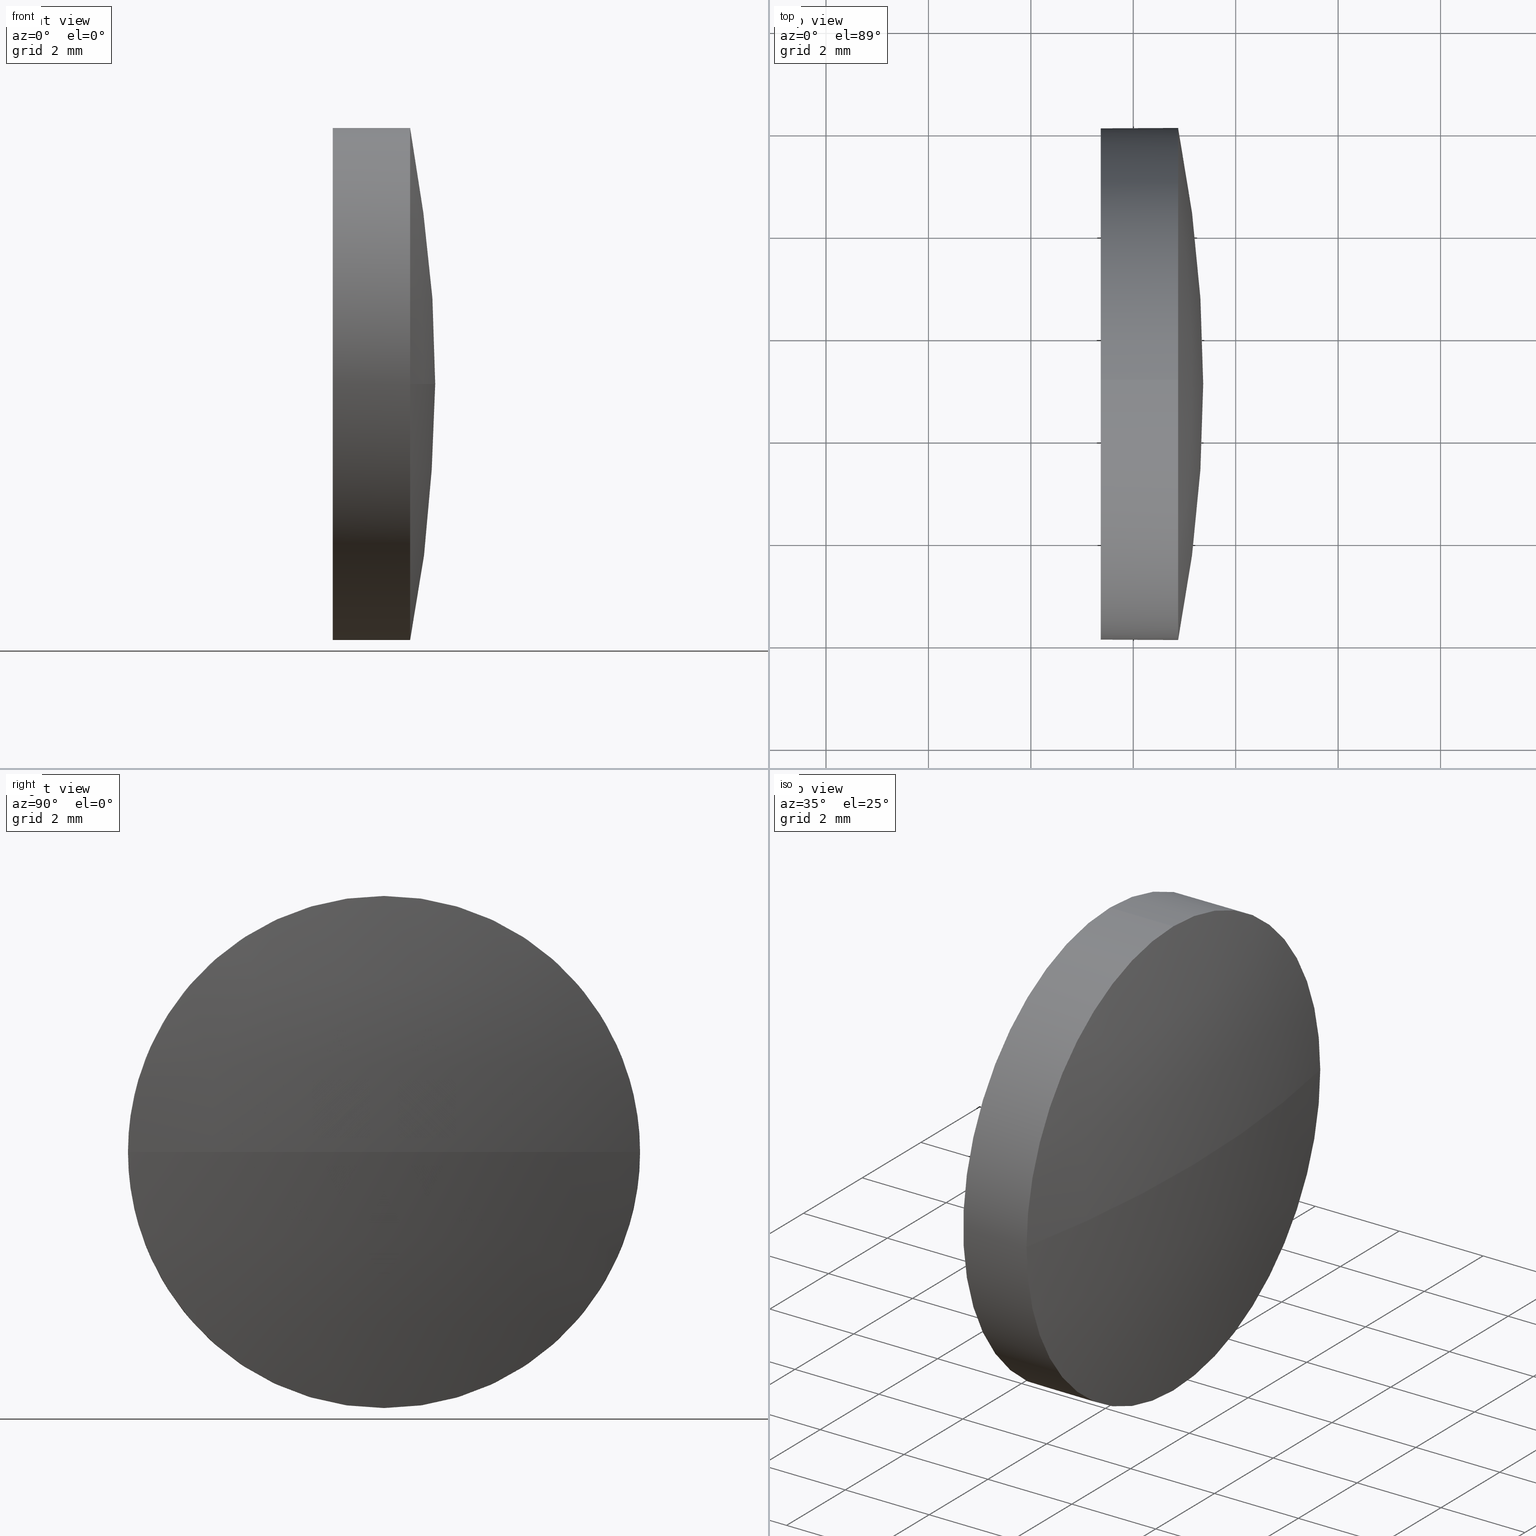
[diagram: canonical four-view strip — front | top / right | iso, engineering-drawing reading convention]
A machine part, canonical four-view strip (front | top / right | iso — engineering-drawing reading convention). The complete STEP part file that produces these views, byte-faithful:
ISO-10303-21;
HEADER;
FILE_DESCRIPTION (( 'STEP AP214' ),
    '1' );
FILE_NAME ('100192.STEP',
    '2019-05-21T09:33:21',
    ( '' ),
    ( '' ),
    'SwSTEP 2.0',
    'SolidWorks 2016',
    '' );
FILE_SCHEMA (( 'AUTOMOTIVE_DESIGN' ));
ENDSEC;

DATA;
#1 = ORIENTED_EDGE ( 'NONE', *, *, #38, .F. ) ;
#2 = VERTEX_POINT ( 'NONE', #40 ) ;
#3 = DIRECTION ( 'NONE',  ( 0.0000000000000000000, 0.0000000000000000000, -1.000000000000000000 ) ) ;
#4 = COLOUR_RGB ( '',1.000000000000000000, 1.000000000000000000, 1.000000000000000000 ) ;
#5 = FACE_OUTER_BOUND ( 'NONE', #73, .T. ) ;
#6 = PRESENTATION_LAYER_ASSIGNMENT (  '', '', ( #15 ) ) ;
#7 = ADVANCED_FACE ( 'NONE', ( #164 ), #136, .T. ) ;
#8 = COLOUR_RGB ( '',1.000000000000000000, 1.000000000000000000, 1.000000000000000000 ) ;
#9 =( NAMED_UNIT ( * ) SI_UNIT ( $, .STERADIAN. ) SOLID_ANGLE_UNIT ( ) );
#10 = PRODUCT_CONTEXT ( 'NONE', #75, 'mechanical' ) ;
#11 = FACE_OUTER_BOUND ( 'NONE', #39, .T. ) ;
#12 = CYLINDRICAL_SURFACE ( 'NONE', #184, 5.000000000000004400 ) ;
#13 = DIRECTION ( 'NONE',  ( -1.000000000000000000, -0.0000000000000000000, -0.0000000000000000000 ) ) ;
#14 =( GEOMETRIC_REPRESENTATION_CONTEXT ( 3 ) GLOBAL_UNCERTAINTY_ASSIGNED_CONTEXT ( ( #22 ) ) GLOBAL_UNIT_ASSIGNED_CONTEXT ( ( #100, #166, #9 ) ) REPRESENTATION_CONTEXT ( 'NONE', 'WORKASPACE' ) );
#15 = STYLED_ITEM ( 'NONE', ( #139 ), #62 ) ;
#16 = SURFACE_STYLE_FILL_AREA ( #132 ) ;
#17 = DIRECTION ( 'NONE',  ( 1.000000000000000000, 0.0000000000000000000, 0.0000000000000000000 ) ) ;
#18 = ORIENTED_EDGE ( 'NONE', *, *, #113, .F. ) ;
#19 = DIRECTION ( 'NONE',  ( -1.000000000000000000, -0.0000000000000000000, -0.0000000000000000000 ) ) ;
#20 = DIRECTION ( 'NONE',  ( 0.0000000000000000000, 0.0000000000000000000, 1.000000000000000000 ) ) ;
#21 = EDGE_CURVE ( 'NONE', #2, #185, #68, .T. ) ;
#22 = UNCERTAINTY_MEASURE_WITH_UNIT (LENGTH_MEASURE( 1.000000000000000100E-005 ), #100, 'distance_accuracy_value', 'NONE');
#23 = CLOSED_SHELL ( 'NONE', ( #101, #51, #81, #7, #58 ) ) ;
#24 = ORIENTED_EDGE ( 'NONE', *, *, #142, .F. ) ;
#25 = CARTESIAN_POINT ( 'NONE',  ( 464.8755895717470100, 129.0640257703732300, 5.000000000000004400 ) ) ;
#26 = CARTESIAN_POINT ( 'NONE',  ( 464.8755895717470100, 129.0640257703732300, 0.0000000000000000000 ) ) ;
#27 = PRODUCT_DEFINITION_CONTEXT ( 'detailed design', #182, 'design' ) ;
#28 = CIRCLE ( 'NONE', #130, 5.000000000000004400 ) ;
#29 = LINE ( 'NONE', #160, #172 ) ;
#30 = ORIENTED_EDGE ( 'NONE', *, *, #142, .T. ) ;
#31 = DIRECTION ( 'NONE',  ( 0.0000000000000000000, 1.224646799147353200E-016, -1.000000000000000000 ) ) ;
#32 = SPHERICAL_SURFACE ( 'NONE', #153, 25.75520408163263400 ) ;
#33 = PRODUCT_DEFINITION_FORMATION_WITH_SPECIFIED_SOURCE ( '�κ�', '', #95, .NOT_KNOWN. ) ;
#34 = SPHERICAL_SURFACE ( 'NONE', #84, 25.75520408163263400 ) ;
#35 =( LENGTH_UNIT ( ) NAMED_UNIT ( * ) SI_UNIT ( .MILLI., .METRE. ) );
#36 =( NAMED_UNIT ( * ) PLANE_ANGLE_UNIT ( ) SI_UNIT ( $, .RADIAN. ) );
#37 = EDGE_LOOP ( 'NONE', ( #123, #46, #1, #99 ) ) ;
#38 = EDGE_CURVE ( 'NONE', #162, #185, #119, .T. ) ;
#39 = EDGE_LOOP ( 'NONE', ( #96, #104, #18, #24, #65 ) ) ;
#40 = CARTESIAN_POINT ( 'NONE',  ( 465.3655895717470200, 129.0640257703731500, 0.0000000000000000000 ) ) ;
#41 = DIRECTION ( 'NONE',  ( 0.0000000000000000000, 0.0000000000000000000, 1.000000000000000000 ) ) ;
#42 = EDGE_LOOP ( 'NONE', ( #112, #87, #57, #64 ) ) ;
#43 =( NAMED_UNIT ( * ) SI_UNIT ( $, .STERADIAN. ) SOLID_ANGLE_UNIT ( ) );
#44 = DIRECTION ( 'NONE',  ( -0.0000000000000000000, 0.0000000000000000000, -1.000000000000000000 ) ) ;
#45 = PLANE ( 'NONE',  #122 ) ;
#46 = ORIENTED_EDGE ( 'NONE', *, *, #21, .T. ) ;
#47 = DIRECTION ( 'NONE',  ( -1.000000000000000000, -0.0000000000000000000, -0.0000000000000000000 ) ) ;
#48 = DIRECTION ( 'NONE',  ( -1.000000000000000000, -0.0000000000000000000, -0.0000000000000000000 ) ) ;
#49 = LINE ( 'NONE', #144, #152 ) ;
#50 = DIRECTION ( 'NONE',  ( 0.0000000000000000000, 0.0000000000000000000, 1.000000000000000000 ) ) ;
#51 = ADVANCED_FACE ( 'NONE', ( #179 ), #34, .T. ) ;
#52 =( GEOMETRIC_REPRESENTATION_CONTEXT ( 3 ) GLOBAL_UNCERTAINTY_ASSIGNED_CONTEXT ( ( #114 ) ) GLOBAL_UNIT_ASSIGNED_CONTEXT ( ( #35, #36, #150 ) ) REPRESENTATION_CONTEXT ( 'NONE', 'WORKASPACE' ) );
#53 = VERTEX_POINT ( 'NONE', #66 ) ;
#54 = FILL_AREA_STYLE_COLOUR ( '', #8 ) ;
#55 = CARTESIAN_POINT ( 'NONE',  ( 462.5679173176816300, 129.0640257703732300, 0.0000000000000000000 ) ) ;
#56 = UNCERTAINTY_MEASURE_WITH_UNIT (LENGTH_MEASURE( 1.000000000000000100E-005 ), #79, 'distance_accuracy_value', 'NONE');
#57 = ORIENTED_EDGE ( 'NONE', *, *, #94, .F. ) ;
#58 = ADVANCED_FACE ( 'NONE', ( #5 ), #45, .F. ) ;
#59 = EDGE_CURVE ( 'NONE', #2, #145, #80, .T. ) ;
#60 = APPLICATION_PROTOCOL_DEFINITION ( 'draft international standard', 'automotive_design', 1998, #75 ) ;
#61 = DIRECTION ( 'NONE',  ( -1.000000000000000000, -0.0000000000000000000, -0.0000000000000000000 ) ) ;
#62 = ADVANCED_BREP_SHAPE_REPRESENTATION ( '100192', ( #117, #131 ), #52 ) ;
#63 = CIRCLE ( 'NONE', #161, 5.000000000000004400 ) ;
#64 = ORIENTED_EDGE ( 'NONE', *, *, #176, .F. ) ;
#65 = ORIENTED_EDGE ( 'NONE', *, *, #38, .T. ) ;
#66 = CARTESIAN_POINT ( 'NONE',  ( 463.3655895717470200, 129.0640257703732300, -5.000000000000004400 ) ) ;
#67 = SURFACE_SIDE_STYLE ('',( #129 ) ) ;
#68 = CIRCLE ( 'NONE', #97, 25.75520408163262000 ) ;
#69 = CARTESIAN_POINT ( 'NONE',  ( 463.3655895717470200, 129.0640257703732300, 5.000000000000004400 ) ) ;
#70 = EDGE_CURVE ( 'NONE', #145, #162, #92, .T. ) ;
#71 = DIRECTION ( 'NONE',  ( 0.0000000000000000000, 0.0000000000000000000, 1.000000000000000000 ) ) ;
#72 = DIRECTION ( 'NONE',  ( -1.000000000000000000, -0.0000000000000000000, -0.0000000000000000000 ) ) ;
#73 = EDGE_LOOP ( 'NONE', ( #174, #82 ) ) ;
#74 = DIRECTION ( 'NONE',  ( 0.0000000000000000000, 0.0000000000000000000, 1.000000000000000000 ) ) ;
#75 = APPLICATION_CONTEXT ( 'automotive_design' ) ;
#76 = VERTEX_POINT ( 'NONE', #108 ) ;
#77 = AXIS2_PLACEMENT_3D ( 'NONE', #138, #171, #41 ) ;
#78 = MECHANICAL_DESIGN_GEOMETRIC_PRESENTATION_REPRESENTATION (  '', ( #175 ), #173 ) ;
#79 =( LENGTH_UNIT ( ) NAMED_UNIT ( * ) SI_UNIT ( .MILLI., .METRE. ) );
#80 = CIRCLE ( 'NONE', #146, 25.75520408163264800 ) ;
#81 = ADVANCED_FACE ( 'NONE', ( #134 ), #32, .T. ) ;
#82 = ORIENTED_EDGE ( 'NONE', *, *, #159, .T. ) ;
#83 = SURFACE_SIDE_STYLE ('',( #16 ) ) ;
#84 = AXIS2_PLACEMENT_3D ( 'NONE', #90, #137, #155 ) ;
#85 = PRESENTATION_LAYER_ASSIGNMENT (  '', '', ( #175 ) ) ;
#86 = EDGE_CURVE ( 'NONE', #76, #53, #49, .T. ) ;
#87 = ORIENTED_EDGE ( 'NONE', *, *, #59, .T. ) ;
#88 = CARTESIAN_POINT ( 'NONE',  ( 439.6103854901143700, 129.0640257703731500, 0.0000000000000000000 ) ) ;
#89 = DIRECTION ( 'NONE',  ( 0.0000000000000000000, 0.0000000000000000000, 1.000000000000000000 ) ) ;
#90 = CARTESIAN_POINT ( 'NONE',  ( 439.6103854901143700, 129.0640257703731500, 0.0000000000000000000 ) ) ;
#91 = CARTESIAN_POINT ( 'NONE',  ( 439.6103854901143700, 129.0640257703731500, 0.0000000000000000000 ) ) ;
#92 = CIRCLE ( 'NONE', #107, 5.000000000000004400 ) ;
#93 = CARTESIAN_POINT ( 'NONE',  ( 464.8755895717470100, 129.0640257703732300, 0.0000000000000000000 ) ) ;
#94 = EDGE_CURVE ( 'NONE', #76, #145, #28, .T. ) ;
#95 = PRODUCT ( '100192', '100192', '', ( #10 ) ) ;
#96 = ORIENTED_EDGE ( 'NONE', *, *, #176, .T. ) ;
#97 = AXIS2_PLACEMENT_3D ( 'NONE', #88, #121, #168 ) ;
#98 = PRODUCT_DEFINITION ( 'δ֪', '', #33, #27 ) ;
#99 = ORIENTED_EDGE ( 'NONE', *, *, #70, .F. ) ;
#100 =( LENGTH_UNIT ( ) NAMED_UNIT ( * ) SI_UNIT ( .MILLI., .METRE. ) );
#101 = ADVANCED_FACE ( 'NONE', ( #11 ), #12, .T. ) ;
#102 = DIRECTION ( 'NONE',  ( 0.0000000000000000000, 0.0000000000000000000, 1.000000000000000000 ) ) ;
#103 = CARTESIAN_POINT ( 'NONE',  ( 463.3655895717470200, 129.0640257703732300, 0.0000000000000000000 ) ) ;
#104 = ORIENTED_EDGE ( 'NONE', *, *, #86, .T. ) ;
#105 = SHAPE_DEFINITION_REPRESENTATION ( #125, #62 ) ;
#106 = VERTEX_POINT ( 'NONE', #69 ) ;
#107 = AXIS2_PLACEMENT_3D ( 'NONE', #93, #128, #20 ) ;
#108 = CARTESIAN_POINT ( 'NONE',  ( 464.8755895717470100, 129.0640257703732300, -5.000000000000004400 ) ) ;
#109 = DIRECTION ( 'NONE',  ( 0.0000000000000000000, 0.0000000000000000000, 1.000000000000000000 ) ) ;
#110 =( NAMED_UNIT ( * ) PLANE_ANGLE_UNIT ( ) SI_UNIT ( $, .RADIAN. ) );
#111 = DIRECTION ( 'NONE',  ( 0.0000000000000000000, 0.0000000000000000000, 1.000000000000000000 ) ) ;
#112 = ORIENTED_EDGE ( 'NONE', *, *, #21, .F. ) ;
#113 = EDGE_CURVE ( 'NONE', #106, #53, #115, .T. ) ;
#114 = UNCERTAINTY_MEASURE_WITH_UNIT (LENGTH_MEASURE( 1.000000000000000100E-005 ), #35, 'distance_accuracy_value', 'NONE');
#115 = CIRCLE ( 'NONE', #163, 5.000000000000004400 ) ;
#116 = CARTESIAN_POINT ( 'NONE',  ( 0.0000000000000000000, 0.0000000000000000000, 0.0000000000000000000 ) ) ;
#117 = MANIFOLD_SOLID_BREP ( '��ת2', #23 ) ;
#118 = DIRECTION ( 'NONE',  ( 1.000000000000000000, 0.0000000000000000000, 0.0000000000000000000 ) ) ;
#119 = CIRCLE ( 'NONE', #77, 5.000000000000004400 ) ;
#120 = CARTESIAN_POINT ( 'NONE',  ( 463.3655895717470200, 129.0640257703732300, 0.0000000000000000000 ) ) ;
#121 = DIRECTION ( 'NONE',  ( -0.0000000000000000000, 0.0000000000000000000, 1.000000000000000000 ) ) ;
#122 = AXIS2_PLACEMENT_3D ( 'NONE', #124, #17, #3 ) ;
#123 = ORIENTED_EDGE ( 'NONE', *, *, #59, .F. ) ;
#124 = CARTESIAN_POINT ( 'NONE',  ( 463.3655895717470200, 129.0640257703732300, 0.0000000000000000000 ) ) ;
#125 = PRODUCT_DEFINITION_SHAPE ( 'NONE', 'NONE',  #98 ) ;
#126 = ORIENTED_EDGE ( 'NONE', *, *, #94, .T. ) ;
#127 = CARTESIAN_POINT ( 'NONE',  ( 439.6103854901143700, 129.0640257703731500, 0.0000000000000000000 ) ) ;
#128 = DIRECTION ( 'NONE',  ( -1.000000000000000000, -0.0000000000000000000, -0.0000000000000000000 ) ) ;
#129 = SURFACE_STYLE_FILL_AREA ( #156 ) ;
#130 = AXIS2_PLACEMENT_3D ( 'NONE', #177, #72, #71 ) ;
#131 = AXIS2_PLACEMENT_3D ( 'NONE', #116, #50, #118 ) ;
#132 = FILL_AREA_STYLE ('',( #151 ) ) ;
#133 = APPLICATION_PROTOCOL_DEFINITION ( 'draft international standard', 'automotive_design', 1998, #182 ) ;
#134 = FACE_OUTER_BOUND ( 'NONE', #37, .T. ) ;
#135 = AXIS2_PLACEMENT_3D ( 'NONE', #103, #61, #102 ) ;
#136 = CYLINDRICAL_SURFACE ( 'NONE', #178, 5.000000000000004400 ) ;
#137 = DIRECTION ( 'NONE',  ( -0.0000000000000000000, 0.0000000000000000000, -1.000000000000000000 ) ) ;
#138 = CARTESIAN_POINT ( 'NONE',  ( 464.8755895717470100, 129.0640257703732300, 0.0000000000000000000 ) ) ;
#139 = PRESENTATION_STYLE_ASSIGNMENT (( #183 ) ) ;
#140 = EDGE_LOOP ( 'NONE', ( #157, #126, #148, #30, #167 ) ) ;
#141 = DIRECTION ( 'NONE',  ( 0.0000000000000000000, 1.000000000000000000, 1.224646799147352700E-016 ) ) ;
#142 = EDGE_CURVE ( 'NONE', #162, #106, #29, .T. ) ;
#143 = DIRECTION ( 'NONE',  ( 0.0000000000000000000, 1.000000000000000000, 0.0000000000000000000 ) ) ;
#144 = CARTESIAN_POINT ( 'NONE',  ( 462.5679173176816300, 129.0640257703732300, -5.000000000000004400 ) ) ;
#145 = VERTEX_POINT ( 'NONE', #181 ) ;
#146 = AXIS2_PLACEMENT_3D ( 'NONE', #91, #31, #141 ) ;
#147 = CIRCLE ( 'NONE', #135, 5.000000000000004400 ) ;
#148 = ORIENTED_EDGE ( 'NONE', *, *, #70, .T. ) ;
#149 = MECHANICAL_DESIGN_GEOMETRIC_PRESENTATION_REPRESENTATION (  '', ( #15 ), #14 ) ;
#150 =( NAMED_UNIT ( * ) SI_UNIT ( $, .STERADIAN. ) SOLID_ANGLE_UNIT ( ) );
#151 = FILL_AREA_STYLE_COLOUR ( '', #4 ) ;
#152 = VECTOR ( 'NONE', #19, 1000.000000000000000 ) ;
#153 = AXIS2_PLACEMENT_3D ( 'NONE', #127, #44, #143 ) ;
#154 = CARTESIAN_POINT ( 'NONE',  ( 462.5679173176816300, 129.0640257703732300, 0.0000000000000000000 ) ) ;
#155 = DIRECTION ( 'NONE',  ( 0.0000000000000000000, 1.000000000000000000, 0.0000000000000000000 ) ) ;
#156 = FILL_AREA_STYLE ('',( #54 ) ) ;
#157 = ORIENTED_EDGE ( 'NONE', *, *, #86, .F. ) ;
#158 = PRESENTATION_STYLE_ASSIGNMENT (( #170 ) ) ;
#159 = EDGE_CURVE ( 'NONE', #53, #106, #147, .T. ) ;
#160 = CARTESIAN_POINT ( 'NONE',  ( 462.5679173176816300, 129.0640257703732300, 5.000000000000004400 ) ) ;
#161 = AXIS2_PLACEMENT_3D ( 'NONE', #26, #165, #74 ) ;
#162 = VERTEX_POINT ( 'NONE', #25 ) ;
#163 = AXIS2_PLACEMENT_3D ( 'NONE', #120, #169, #111 ) ;
#164 = FACE_OUTER_BOUND ( 'NONE', #140, .T. ) ;
#165 = DIRECTION ( 'NONE',  ( -1.000000000000000000, -0.0000000000000000000, -0.0000000000000000000 ) ) ;
#166 =( NAMED_UNIT ( * ) PLANE_ANGLE_UNIT ( ) SI_UNIT ( $, .RADIAN. ) );
#167 = ORIENTED_EDGE ( 'NONE', *, *, #159, .F. ) ;
#168 = DIRECTION ( 'NONE',  ( 1.000000000000000000, 0.0000000000000000000, 0.0000000000000000000 ) ) ;
#169 = DIRECTION ( 'NONE',  ( -1.000000000000000000, -0.0000000000000000000, -0.0000000000000000000 ) ) ;
#170 = SURFACE_STYLE_USAGE ( .BOTH. , #67 ) ;
#171 = DIRECTION ( 'NONE',  ( -1.000000000000000000, -0.0000000000000000000, -0.0000000000000000000 ) ) ;
#172 = VECTOR ( 'NONE', #47, 1000.000000000000000 ) ;
#173 =( GEOMETRIC_REPRESENTATION_CONTEXT ( 3 ) GLOBAL_UNCERTAINTY_ASSIGNED_CONTEXT ( ( #56 ) ) GLOBAL_UNIT_ASSIGNED_CONTEXT ( ( #79, #110, #43 ) ) REPRESENTATION_CONTEXT ( 'NONE', 'WORKASPACE' ) );
#174 = ORIENTED_EDGE ( 'NONE', *, *, #113, .T. ) ;
#175 = STYLED_ITEM ( 'NONE', ( #158 ), #117 ) ;
#176 = EDGE_CURVE ( 'NONE', #185, #76, #63, .T. ) ;
#177 = CARTESIAN_POINT ( 'NONE',  ( 464.8755895717470100, 129.0640257703732300, 0.0000000000000000000 ) ) ;
#178 = AXIS2_PLACEMENT_3D ( 'NONE', #154, #13, #89 ) ;
#179 = FACE_OUTER_BOUND ( 'NONE', #42, .T. ) ;
#180 = CARTESIAN_POINT ( 'NONE',  ( 464.8755895717470100, 134.0640257703732100, 0.0000000000000000000 ) ) ;
#181 = CARTESIAN_POINT ( 'NONE',  ( 464.8755895717470100, 124.0640257703731800, -6.123233995736738700E-016 ) ) ;
#182 = APPLICATION_CONTEXT ( 'automotive_design' ) ;
#183 = SURFACE_STYLE_USAGE ( .BOTH. , #83 ) ;
#184 = AXIS2_PLACEMENT_3D ( 'NONE', #55, #48, #109 ) ;
#185 = VERTEX_POINT ( 'NONE', #180 ) ;
#186 = PRODUCT_RELATED_PRODUCT_CATEGORY ( 'part', '', ( #95 ) ) ;
ENDSEC;
END-ISO-10303-21;
